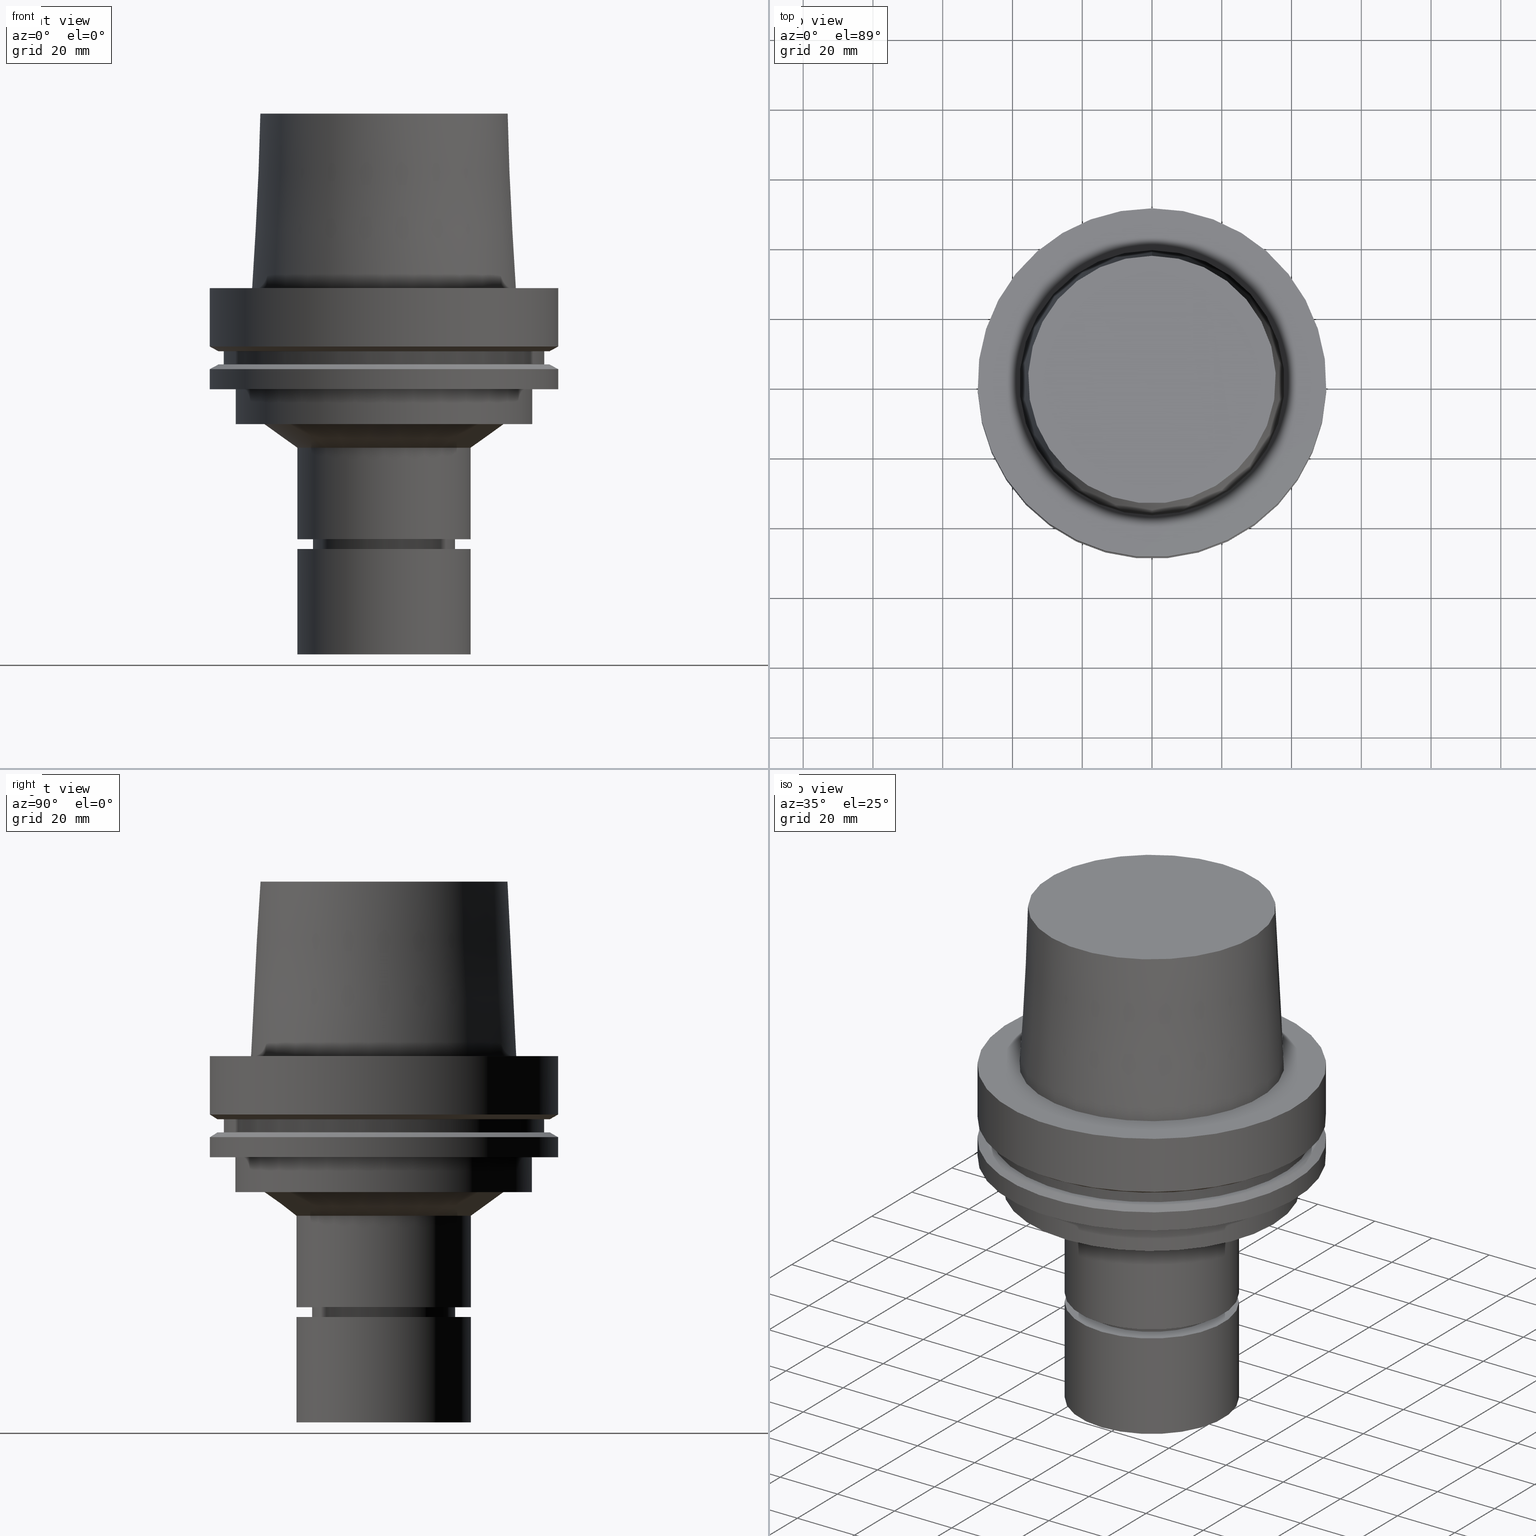
[diagram: canonical four-view strip — front | top / right | iso, engineering-drawing reading convention]
A machine part, canonical four-view strip (front | top / right | iso — engineering-drawing reading convention). The complete STEP part file that produces these views, byte-faithful:
ISO-10303-21;
HEADER;
FILE_DESCRIPTION((''),'1');
FILE_NAME('U:/Translate/02_3D_Field-HP\X2\FF71FF6FFF8CFF9F5916\X0\2013/02_Step_Field-HP\X2\FF71FF6FFF8CFF9F5916\X0\2013/HSK-A100-MEGAER32-105NL.stp','2016-06-22T02:52:50',(''),(''),'Spatial Interop R21 SP3','Kubotek KeyCreator 2011 V10.0.2 (22737)',' ');
FILE_SCHEMA(('automotive_design'));
ENDSEC;
DATA;
#1=MECHANICAL_DESIGN_GEOMETRIC_PRESENTATION_REPRESENTATION(' ',(#14,#15,#16,#17,#18,#19,#20,#21,#22,#23,#24,#25,#26,#27,#28,#29,#30,#31,#32,#33,#34,#35,#36,#37,#38,#39,#40,#41,#42,#43,#44,#45,#46,#47,#48,#49,#50,#51,#52,#53,#54,#55,#56,#57,#58,#59,#60,#61),#10);
#2=PRODUCT_DEFINITION_CONTEXT('',#62,'design');
#3=APPLICATION_PROTOCOL_DEFINITION('INTERNATIONAL STANDARD','automotive_design',1994,#62);
#4=PRODUCT_CATEGORY_RELATIONSHIP('NONE','NONE',#63,#64);
#5=SHAPE_DEFINITION_REPRESENTATION(#65,#66);
#6=PRODUCT_DEFINITION_CONTEXT('',#67,'design');
#7=APPLICATION_PROTOCOL_DEFINITION('INTERNATIONAL STANDARD','automotive_design',1994,#67);
#8=PRODUCT_CATEGORY_RELATIONSHIP('NONE','NONE',#68,#69);
#9=SHAPE_DEFINITION_REPRESENTATION(#70,#71);
#10= (GEOMETRIC_REPRESENTATION_CONTEXT(3)GLOBAL_UNCERTAINTY_ASSIGNED_CONTEXT((#74))GLOBAL_UNIT_ASSIGNED_CONTEXT((#76,#77,#78))REPRESENTATION_CONTEXT('NONE','WORKSPACE'));
#14=STYLED_ITEM('',(#80,#81),#82);
#15=STYLED_ITEM('',(#83,#84),#85);
#16=STYLED_ITEM('',(#86,#87),#88);
#17=STYLED_ITEM('',(#89),#90);
#18=STYLED_ITEM('',(#91,#92),#93);
#19=STYLED_ITEM('',(#94),#95);
#20=STYLED_ITEM('',(#96),#97);
#21=STYLED_ITEM('',(#98),#99);
#22=STYLED_ITEM('',(#100,#101),#102);
#23=STYLED_ITEM('',(#103,#104),#105);
#24=STYLED_ITEM('',(#106),#107);
#25=STYLED_ITEM('',(#108,#109),#110);
#26=STYLED_ITEM('',(#111,#112),#113);
#27=STYLED_ITEM('',(#114,#115),#116);
#28=STYLED_ITEM('',(#117,#118),#119);
#29=STYLED_ITEM('',(#120),#121);
#30=STYLED_ITEM('',(#122,#123),#124);
#31=STYLED_ITEM('',(#125),#126);
#32=STYLED_ITEM('',(#127),#128);
#33=STYLED_ITEM('',(#129,#130),#131);
#34=STYLED_ITEM('',(#132,#133),#134);
#35=STYLED_ITEM('',(#135,#136),#137);
#36=STYLED_ITEM('',(#138,#139),#140);
#37=STYLED_ITEM('',(#141),#142);
#38=STYLED_ITEM('',(#143),#144);
#39=STYLED_ITEM('',(#145,#146),#147);
#40=STYLED_ITEM('',(#148),#149);
#41=STYLED_ITEM('',(#150),#151);
#42=STYLED_ITEM('',(#152),#153);
#43=STYLED_ITEM('',(#154,#155),#156);
#44=STYLED_ITEM('',(#157),#158);
#45=STYLED_ITEM('',(#159),#160);
#46=STYLED_ITEM('',(#161,#162),#163);
#47=STYLED_ITEM('',(#164,#165),#166);
#48=STYLED_ITEM('',(#167,#168),#169);
#49=STYLED_ITEM('',(#170),#171);
#50=STYLED_ITEM('',(#172),#173);
#51=STYLED_ITEM('',(#174),#175);
#52=STYLED_ITEM('',(#176,#177),#178);
#53=STYLED_ITEM('',(#179),#180);
#54=STYLED_ITEM('',(#181,#182),#183);
#55=STYLED_ITEM('',(#184),#185);
#56=STYLED_ITEM('',(#186),#187);
#57=STYLED_ITEM('',(#188,#189),#190);
#58=STYLED_ITEM('',(#191,#192),#193);
#59=STYLED_ITEM('',(#194),#195);
#60=STYLED_ITEM('',(#196,#197),#198);
#61=STYLED_ITEM('',(#199,#200),#201);
#62=APPLICATION_CONTEXT(' ');
#63=PRODUCT_CATEGORY('part','NONE');
#64=PRODUCT_RELATED_PRODUCT_CATEGORY('detail',' ',(#202));
#65=PRODUCT_DEFINITION_SHAPE('NONE','NONE',#203);
#66=ADVANCED_BREP_SHAPE_REPRESENTATION('Unnamed[1]',(#102,#204),#10);
#67=APPLICATION_CONTEXT(' ');
#68=PRODUCT_CATEGORY('part','NONE');
#69=PRODUCT_RELATED_PRODUCT_CATEGORY('detail',' ',(#205));
#70=PRODUCT_DEFINITION_SHAPE('NONE','NONE',#206);
#71=ADVANCED_BREP_SHAPE_REPRESENTATION('Unnamed[1]',(#88,#207),#10);
#74=UNCERTAINTY_MEASURE_WITH_UNIT(LENGTH_MEASURE(1.0E-006),#76,'','');
#76= (CONVERSION_BASED_UNIT('MILLIMETRE',#210)LENGTH_UNIT()NAMED_UNIT(#213));
#77= (NAMED_UNIT(#215)PLANE_ANGLE_UNIT()SI_UNIT($,.RADIAN.));
#78= (NAMED_UNIT(#215)SOLID_ANGLE_UNIT()SI_UNIT($,.STERADIAN.));
#80=PRESENTATION_STYLE_ASSIGNMENT((#221));
#81=PRESENTATION_STYLE_ASSIGNMENT((#222));
#82=ADVANCED_FACE('Unnamed[1]',(#223,#224),#225,.T.);
#83=PRESENTATION_STYLE_ASSIGNMENT((#226));
#84=PRESENTATION_STYLE_ASSIGNMENT((#227));
#85=ADVANCED_FACE('Unnamed[1]',(#228,#229),#230,.T.);
#86=PRESENTATION_STYLE_ASSIGNMENT((#231));
#87=PRESENTATION_STYLE_ASSIGNMENT((#232));
#88=MANIFOLD_SOLID_BREP('Unnamed[1]',#233);
#89=PRESENTATION_STYLE_ASSIGNMENT((#234));
#90=EDGE_CURVE('Unnamed[1]',#235,#235,#236,.T.);
#91=PRESENTATION_STYLE_ASSIGNMENT((#237));
#92=PRESENTATION_STYLE_ASSIGNMENT((#238));
#93=ADVANCED_FACE('Unnamed[1]',(#239,#240),#241,.T.);
#94=PRESENTATION_STYLE_ASSIGNMENT((#242));
#95=EDGE_CURVE('Unnamed[1]',#243,#243,#244,.T.);
#96=PRESENTATION_STYLE_ASSIGNMENT((#245));
#97=EDGE_CURVE('Unnamed[1]',#246,#246,#247,.T.);
#98=PRESENTATION_STYLE_ASSIGNMENT((#248));
#99=EDGE_CURVE('Unnamed[1]',#249,#249,#250,.T.);
#100=PRESENTATION_STYLE_ASSIGNMENT((#251));
#101=PRESENTATION_STYLE_ASSIGNMENT((#252));
#102=MANIFOLD_SOLID_BREP('Unnamed[1]',#253);
#103=PRESENTATION_STYLE_ASSIGNMENT((#254));
#104=PRESENTATION_STYLE_ASSIGNMENT((#255));
#105=ADVANCED_FACE('Unnamed[1]',(#256,#257),#258,.T.);
#106=PRESENTATION_STYLE_ASSIGNMENT((#259));
#107=EDGE_CURVE('Unnamed[1]',#260,#260,#261,.T.);
#108=PRESENTATION_STYLE_ASSIGNMENT((#262));
#109=PRESENTATION_STYLE_ASSIGNMENT((#263));
#110=ADVANCED_FACE('Unnamed[1]',(#264,#265),#266,.T.);
#111=PRESENTATION_STYLE_ASSIGNMENT((#267));
#112=PRESENTATION_STYLE_ASSIGNMENT((#268));
#113=ADVANCED_FACE('Unnamed[1]',(#269),#270,.T.);
#114=PRESENTATION_STYLE_ASSIGNMENT((#271));
#115=PRESENTATION_STYLE_ASSIGNMENT((#272));
#116=ADVANCED_FACE('Unnamed[1]',(#273,#274),#275,.T.);
#117=PRESENTATION_STYLE_ASSIGNMENT((#276));
#118=PRESENTATION_STYLE_ASSIGNMENT((#277));
#119=ADVANCED_FACE('Unnamed[1]',(#278,#279),#280,.T.);
#120=PRESENTATION_STYLE_ASSIGNMENT((#281));
#121=EDGE_CURVE('Unnamed[1]',#282,#282,#283,.T.);
#122=PRESENTATION_STYLE_ASSIGNMENT((#284));
#123=PRESENTATION_STYLE_ASSIGNMENT((#285));
#124=ADVANCED_FACE('Unnamed[1]',(#286,#287),#288,.T.);
#125=PRESENTATION_STYLE_ASSIGNMENT((#289));
#126=EDGE_CURVE('Unnamed[1]',#290,#290,#291,.T.);
#127=PRESENTATION_STYLE_ASSIGNMENT((#292));
#128=EDGE_CURVE('Unnamed[1]',#293,#293,#294,.T.);
#129=PRESENTATION_STYLE_ASSIGNMENT((#295));
#130=PRESENTATION_STYLE_ASSIGNMENT((#296));
#131=ADVANCED_FACE('Unnamed[1]',(#297),#298,.T.);
#132=PRESENTATION_STYLE_ASSIGNMENT((#299));
#133=PRESENTATION_STYLE_ASSIGNMENT((#300));
#134=ADVANCED_FACE('Unnamed[1]',(#301,#302),#303,.T.);
#135=PRESENTATION_STYLE_ASSIGNMENT((#304));
#136=PRESENTATION_STYLE_ASSIGNMENT((#305));
#137=ADVANCED_FACE('Unnamed[1]',(#306,#307),#308,.T.);
#138=PRESENTATION_STYLE_ASSIGNMENT((#309));
#139=PRESENTATION_STYLE_ASSIGNMENT((#310));
#140=ADVANCED_FACE('Unnamed[1]',(#311,#312),#313,.T.);
#141=PRESENTATION_STYLE_ASSIGNMENT((#314));
#142=EDGE_CURVE('Unnamed[1]',#315,#315,#316,.T.);
#143=PRESENTATION_STYLE_ASSIGNMENT((#317));
#144=EDGE_CURVE('Unnamed[1]',#318,#318,#319,.T.);
#145=PRESENTATION_STYLE_ASSIGNMENT((#320));
#146=PRESENTATION_STYLE_ASSIGNMENT((#321));
#147=ADVANCED_FACE('Unnamed[1]',(#322,#323),#324,.T.);
#148=PRESENTATION_STYLE_ASSIGNMENT((#325));
#149=EDGE_CURVE('Unnamed[1]',#326,#326,#327,.T.);
#150=PRESENTATION_STYLE_ASSIGNMENT((#328));
#151=EDGE_CURVE('Unnamed[1]',#329,#329,#330,.T.);
#152=PRESENTATION_STYLE_ASSIGNMENT((#331));
#153=EDGE_CURVE('Unnamed[1]',#332,#332,#333,.T.);
#154=PRESENTATION_STYLE_ASSIGNMENT((#334));
#155=PRESENTATION_STYLE_ASSIGNMENT((#335));
#156=ADVANCED_FACE('Unnamed[1]',(#336,#337),#338,.T.);
#157=PRESENTATION_STYLE_ASSIGNMENT((#339));
#158=EDGE_CURVE('Unnamed[1]',#340,#340,#341,.T.);
#159=PRESENTATION_STYLE_ASSIGNMENT((#342));
#160=EDGE_CURVE('Unnamed[1]',#343,#343,#344,.T.);
#161=PRESENTATION_STYLE_ASSIGNMENT((#345));
#162=PRESENTATION_STYLE_ASSIGNMENT((#346));
#163=ADVANCED_FACE('Unnamed[1]',(#347,#348),#349,.T.);
#164=PRESENTATION_STYLE_ASSIGNMENT((#350));
#165=PRESENTATION_STYLE_ASSIGNMENT((#351));
#166=ADVANCED_FACE('Unnamed[1]',(#352,#353),#354,.T.);
#167=PRESENTATION_STYLE_ASSIGNMENT((#355));
#168=PRESENTATION_STYLE_ASSIGNMENT((#356));
#169=ADVANCED_FACE('Unnamed[1]',(#357,#358),#359,.T.);
#170=PRESENTATION_STYLE_ASSIGNMENT((#360));
#171=EDGE_CURVE('Unnamed[1]',#361,#361,#362,.T.);
#172=PRESENTATION_STYLE_ASSIGNMENT((#363));
#173=EDGE_CURVE('Unnamed[1]',#364,#364,#365,.T.);
#174=PRESENTATION_STYLE_ASSIGNMENT((#366));
#175=EDGE_CURVE('Unnamed[1]',#367,#367,#368,.T.);
#176=PRESENTATION_STYLE_ASSIGNMENT((#369));
#177=PRESENTATION_STYLE_ASSIGNMENT((#370));
#178=ADVANCED_FACE('Unnamed[1]',(#371,#372),#373,.T.);
#179=PRESENTATION_STYLE_ASSIGNMENT((#374));
#180=EDGE_CURVE('Unnamed[1]',#375,#375,#376,.T.);
#181=PRESENTATION_STYLE_ASSIGNMENT((#377));
#182=PRESENTATION_STYLE_ASSIGNMENT((#378));
#183=ADVANCED_FACE('Unnamed[1]',(#379,#380),#381,.T.);
#184=PRESENTATION_STYLE_ASSIGNMENT((#382));
#185=EDGE_CURVE('Unnamed[1]',#383,#383,#384,.T.);
#186=PRESENTATION_STYLE_ASSIGNMENT((#385));
#187=EDGE_CURVE('Unnamed[1]',#386,#386,#387,.T.);
#188=PRESENTATION_STYLE_ASSIGNMENT((#388));
#189=PRESENTATION_STYLE_ASSIGNMENT((#389));
#190=ADVANCED_FACE('Unnamed[1]',(#390),#391,.T.);
#191=PRESENTATION_STYLE_ASSIGNMENT((#392));
#192=PRESENTATION_STYLE_ASSIGNMENT((#393));
#193=ADVANCED_FACE('Unnamed[1]',(#394,#395),#396,.T.);
#194=PRESENTATION_STYLE_ASSIGNMENT((#397));
#195=EDGE_CURVE('Unnamed[1]',#398,#398,#399,.T.);
#196=PRESENTATION_STYLE_ASSIGNMENT((#400));
#197=PRESENTATION_STYLE_ASSIGNMENT((#401));
#198=ADVANCED_FACE('Unnamed[1]',(#402,#403),#404,.T.);
#199=PRESENTATION_STYLE_ASSIGNMENT((#405));
#200=PRESENTATION_STYLE_ASSIGNMENT((#406));
#201=ADVANCED_FACE('Unnamed[1]',(#407),#408,.T.);
#202=PRODUCT('Unnamed[1]','Unnamed[1]','PART-Unnamed[1]-DESC',(#409));
#203=PRODUCT_DEFINITION('NONE','NONE',#410,#2);
#204=AXIS2_PLACEMENT_3D('',#411,#412,#413);
#205=PRODUCT('Unnamed[1]','Unnamed[1]','PART-Unnamed[1]-DESC',(#414));
#206=PRODUCT_DEFINITION('NONE','NONE',#415,#6);
#207=AXIS2_PLACEMENT_3D('',#416,#417,#418);
#210=LENGTH_MEASURE_WITH_UNIT(LENGTH_MEASURE(1.0),#419);
#213=DIMENSIONAL_EXPONENTS(1.0,0.0,0.0,0.0,0.0,0.0,0.0);
#215=DIMENSIONAL_EXPONENTS(0.0,0.0,0.0,0.0,0.0,0.0,0.0);
#221=SURFACE_STYLE_USAGE(.BOTH.,#420);
#222=CURVE_STYLE('',#421,POSITIVE_LENGTH_MEASURE(1000.0),#422);
#223=FACE_BOUND('',#423,.T.);
#224=FACE_BOUND('',#424,.T.);
#225=CYLINDRICAL_SURFACE('',#425,20.0);
#226=SURFACE_STYLE_USAGE(.BOTH.,#426);
#227=CURVE_STYLE('',#427,POSITIVE_LENGTH_MEASURE(1000.0),#428);
#228=FACE_BOUND('',#429,.T.);
#229=FACE_BOUND('',#430,.T.);
#230=CYLINDRICAL_SURFACE('',#431,42.5);
#231=SURFACE_STYLE_USAGE(.BOTH.,#432);
#232=CURVE_STYLE('',#433,POSITIVE_LENGTH_MEASURE(1000.0),#434);
#233=CLOSED_SHELL('',(#190,#201,#147));
#234=CURVE_STYLE('',#435,POSITIVE_LENGTH_MEASURE(1000.0),#436);
#235=VERTEX_POINT('',#437);
#236=CIRCLE('',#438,46.0);
#237=SURFACE_STYLE_USAGE(.BOTH.,#439);
#238=CURVE_STYLE('',#440,POSITIVE_LENGTH_MEASURE(1000.0),#441);
#239=FACE_BOUND('',#442,.T.);
#240=FACE_BOUND('',#443,.T.);
#241=CONICAL_SURFACE('',#444,36.7500000007484,0.0499583956894843);
#242=CURVE_STYLE('',#445,POSITIVE_LENGTH_MEASURE(1000.0),#446);
#243=VERTEX_POINT('',#447);
#244=CIRCLE('',#448,42.5);
#245=CURVE_STYLE('',#449,POSITIVE_LENGTH_MEASURE(1000.0),#450);
#246=VERTEX_POINT('',#451);
#247=CIRCLE('',#452,20.5000000000012);
#248=CURVE_STYLE('',#453,POSITIVE_LENGTH_MEASURE(1000.0),#454);
#249=VERTEX_POINT('',#455);
#250=CIRCLE('',#456,18.8999999999997);
#251=SURFACE_STYLE_USAGE(.BOTH.,#457);
#252=CURVE_STYLE('',#458,POSITIVE_LENGTH_MEASURE(1000.0),#459);
#253=CLOSED_SHELL('',(#131,#93,#137,#116,#178,#134,#119,#183,#140,#156,#163,#85,#105,#169,#193,#166,#198,#110,#82,#124,#113));
#254=SURFACE_STYLE_USAGE(.BOTH.,#460);
#255=CURVE_STYLE('',#461,POSITIVE_LENGTH_MEASURE(1000.0),#462);
#256=FACE_BOUND('',#463,.T.);
#257=FACE_OUTER_BOUND('',#464,.T.);
#258=PLANE('',#465);
#259=CURVE_STYLE('',#466,POSITIVE_LENGTH_MEASURE(1000.0),#467);
#260=VERTEX_POINT('',#468);
#261=CIRCLE('',#469,47.62259526);
#262=SURFACE_STYLE_USAGE(.BOTH.,#470);
#263=CURVE_STYLE('',#471,POSITIVE_LENGTH_MEASURE(1000.0),#472);
#264=FACE_BOUND('',#473,.T.);
#265=FACE_BOUND('',#474,.T.);
#266=CONICAL_SURFACE('',#475,20.2500000000006,0.766162649696593);
#267=SURFACE_STYLE_USAGE(.BOTH.,#476);
#268=CURVE_STYLE('',#477,POSITIVE_LENGTH_MEASURE(1000.0),#478);
#269=FACE_OUTER_BOUND('',#479,.T.);
#270=PLANE('',#480);
#271=SURFACE_STYLE_USAGE(.BOTH.,#481);
#272=CURVE_STYLE('',#482,POSITIVE_LENGTH_MEASURE(1000.0),#483);
#273=FACE_BOUND('',#484,.T.);
#274=FACE_BOUND('',#485,.T.);
#275=CYLINDRICAL_SURFACE('',#486,50.0);
#276=SURFACE_STYLE_USAGE(.BOTH.,#487);
#277=CURVE_STYLE('',#488,POSITIVE_LENGTH_MEASURE(1000.0),#489);
#278=FACE_BOUND('',#490,.T.);
#279=FACE_BOUND('',#491,.T.);
#280=CYLINDRICAL_SURFACE('',#492,46.0);
#281=CURVE_STYLE('',#493,POSITIVE_LENGTH_MEASURE(1000.0),#494);
#282=VERTEX_POINT('',#495);
#283=CIRCLE('',#496,20.0000000000001);
#284=SURFACE_STYLE_USAGE(.BOTH.,#497);
#285=CURVE_STYLE('',#498,POSITIVE_LENGTH_MEASURE(1000.0),#499);
#286=FACE_BOUND('',#500,.T.);
#287=FACE_BOUND('',#501,.T.);
#288=CONICAL_SURFACE('',#502,19.4499999999999,0.523598775598222);
#289=CURVE_STYLE('',#503,POSITIVE_LENGTH_MEASURE(1000.0),#504);
#290=VERTEX_POINT('',#505);
#291=CIRCLE('',#506,35.5000000015618);
#292=CURVE_STYLE('',#507,POSITIVE_LENGTH_MEASURE(1000.0),#508);
#293=VERTEX_POINT('',#509);
#294=CIRCLE('',#510,50.0);
#295=SURFACE_STYLE_USAGE(.BOTH.,#511);
#296=CURVE_STYLE('',#512,POSITIVE_LENGTH_MEASURE(1000.0),#513);
#297=FACE_OUTER_BOUND('',#514,.T.);
#298=PLANE('',#515);
#299=SURFACE_STYLE_USAGE(.BOTH.,#516);
#300=CURVE_STYLE('',#517,POSITIVE_LENGTH_MEASURE(1000.0),#518);
#301=FACE_BOUND('',#519,.T.);
#302=FACE_OUTER_BOUND('',#520,.T.);
#303=PLANE('',#521);
#304=SURFACE_STYLE_USAGE(.BOTH.,#522);
#305=CURVE_STYLE('',#523,POSITIVE_LENGTH_MEASURE(1000.0),#524);
#306=FACE_OUTER_BOUND('',#525,.T.);
#307=FACE_BOUND('',#526,.T.);
#308=PLANE('',#527);
#309=SURFACE_STYLE_USAGE(.BOTH.,#528);
#310=CURVE_STYLE('',#529,POSITIVE_LENGTH_MEASURE(1000.0),#530);
#311=FACE_BOUND('',#531,.T.);
#312=FACE_BOUND('',#532,.T.);
#313=CONICAL_SURFACE('',#533,48.81129763,1.04719755328238);
#314=CURVE_STYLE('',#534,POSITIVE_LENGTH_MEASURE(1000.0),#535);
#315=VERTEX_POINT('',#536);
#316=CIRCLE('',#537,25.0);
#317=CURVE_STYLE('',#538,POSITIVE_LENGTH_MEASURE(1000.0),#539);
#318=VERTEX_POINT('',#540);
#319=CIRCLE('',#541,46.0);
#320=SURFACE_STYLE_USAGE(.BOTH.,#542);
#321=CURVE_STYLE('',#543,POSITIVE_LENGTH_MEASURE(1000.0),#544);
#322=FACE_BOUND('',#545,.T.);
#323=FACE_BOUND('',#546,.T.);
#324=CYLINDRICAL_SURFACE('',#547,25.0);
#325=CURVE_STYLE('',#548,POSITIVE_LENGTH_MEASURE(1000.0),#549);
#326=VERTEX_POINT('',#550);
#327=CIRCLE('',#551,25.0);
#328=CURVE_STYLE('',#552,POSITIVE_LENGTH_MEASURE(1000.0),#553);
#329=VERTEX_POINT('',#554);
#330=CIRCLE('',#555,25.0);
#331=CURVE_STYLE('',#556,POSITIVE_LENGTH_MEASURE(1000.0),#557);
#332=VERTEX_POINT('',#558);
#333=CIRCLE('',#559,42.5);
#334=SURFACE_STYLE_USAGE(.BOTH.,#560);
#335=CURVE_STYLE('',#561,POSITIVE_LENGTH_MEASURE(1000.0),#562);
#336=FACE_BOUND('',#563,.T.);
#337=FACE_BOUND('',#564,.T.);
#338=CYLINDRICAL_SURFACE('',#565,50.0);
#339=CURVE_STYLE('',#566,POSITIVE_LENGTH_MEASURE(1000.0),#567);
#340=VERTEX_POINT('',#568);
#341=CIRCLE('',#569,50.0);
#342=CURVE_STYLE('',#570,POSITIVE_LENGTH_MEASURE(1000.0),#571);
#343=VERTEX_POINT('',#572);
#344=CIRCLE('',#573,25.0);
#345=SURFACE_STYLE_USAGE(.BOTH.,#574);
#346=CURVE_STYLE('',#575,POSITIVE_LENGTH_MEASURE(1000.0),#576);
#347=FACE_BOUND('',#577,.T.);
#348=FACE_OUTER_BOUND('',#578,.T.);
#349=PLANE('',#579);
#350=SURFACE_STYLE_USAGE(.BOTH.,#580);
#351=CURVE_STYLE('',#581,POSITIVE_LENGTH_MEASURE(1000.0),#582);
#352=FACE_BOUND('',#583,.T.);
#353=FACE_OUTER_BOUND('',#584,.T.);
#354=PLANE('',#585);
#355=SURFACE_STYLE_USAGE(.BOTH.,#586);
#356=CURVE_STYLE('',#587,POSITIVE_LENGTH_MEASURE(1000.0),#588);
#357=FACE_BOUND('',#589,.T.);
#358=FACE_BOUND('',#590,.T.);
#359=CONICAL_SURFACE('',#591,29.6596647228089,0.942916776538433);
#360=CURVE_STYLE('',#592,POSITIVE_LENGTH_MEASURE(1000.0),#593);
#361=VERTEX_POINT('',#594);
#362=CIRCLE('',#595,50.0);
#363=CURVE_STYLE('',#596,POSITIVE_LENGTH_MEASURE(1000.0),#597);
#364=VERTEX_POINT('',#598);
#365=CIRCLE('',#599,34.3193294456178);
#366=CURVE_STYLE('',#600,POSITIVE_LENGTH_MEASURE(1000.0),#601);
#367=VERTEX_POINT('',#602);
#368=CIRCLE('',#603,20.0);
#369=SURFACE_STYLE_USAGE(.BOTH.,#604);
#370=CURVE_STYLE('',#605,POSITIVE_LENGTH_MEASURE(1000.0),#606);
#371=FACE_BOUND('',#607,.T.);
#372=FACE_BOUND('',#608,.T.);
#373=CONICAL_SURFACE('',#609,48.81129763,1.04719755328238);
#374=CURVE_STYLE('',#610,POSITIVE_LENGTH_MEASURE(1000.0),#611);
#375=VERTEX_POINT('',#612);
#376=CIRCLE('',#613,37.9999999999349);
#377=SURFACE_STYLE_USAGE(.BOTH.,#614);
#378=CURVE_STYLE('',#615,POSITIVE_LENGTH_MEASURE(1000.0),#616);
#379=FACE_OUTER_BOUND('',#617,.T.);
#380=FACE_BOUND('',#618,.T.);
#381=PLANE('',#619);
#382=CURVE_STYLE('',#620,POSITIVE_LENGTH_MEASURE(1000.0),#621);
#383=VERTEX_POINT('',#622);
#384=CIRCLE('',#623,50.0);
#385=CURVE_STYLE('',#624,POSITIVE_LENGTH_MEASURE(1000.0),#625);
#386=VERTEX_POINT('',#626);
#387=CIRCLE('',#627,47.62259526);
#388=SURFACE_STYLE_USAGE(.BOTH.,#628);
#389=CURVE_STYLE('',#629,POSITIVE_LENGTH_MEASURE(1000.0),#630);
#390=FACE_OUTER_BOUND('',#631,.T.);
#391=PLANE('',#632);
#392=SURFACE_STYLE_USAGE(.BOTH.,#633);
#393=CURVE_STYLE('',#634,POSITIVE_LENGTH_MEASURE(1000.0),#635);
#394=FACE_BOUND('',#636,.T.);
#395=FACE_BOUND('',#637,.T.);
#396=CYLINDRICAL_SURFACE('',#638,25.0);
#397=CURVE_STYLE('',#639,POSITIVE_LENGTH_MEASURE(1000.0),#640);
#398=VERTEX_POINT('',#641);
#399=CIRCLE('',#642,20.4999999999911);
#400=SURFACE_STYLE_USAGE(.BOTH.,#643);
#401=CURVE_STYLE('',#644,POSITIVE_LENGTH_MEASURE(1000.0),#645);
#402=FACE_BOUND('',#646,.T.);
#403=FACE_BOUND('',#647,.T.);
#404=CYLINDRICAL_SURFACE('',#648,20.4999999999961);
#405=SURFACE_STYLE_USAGE(.BOTH.,#649);
#406=CURVE_STYLE('',#650,POSITIVE_LENGTH_MEASURE(1000.0),#651);
#407=FACE_OUTER_BOUND('',#652,.T.);
#408=PLANE('',#653);
#409=PRODUCT_CONTEXT('',#62,'mechanical');
#410=PRODUCT_DEFINITION_FORMATION_WITH_SPECIFIED_SOURCE(' ','NONE',#202,.NOT_KNOWN.);
#411=CARTESIAN_POINT('',(0.0,0.0,0.0));
#412=DIRECTION('',(0.0,0.0,1.0));
#413=DIRECTION('',(1.0,0.0,0.0));
#414=PRODUCT_CONTEXT('',#67,'mechanical');
#415=PRODUCT_DEFINITION_FORMATION_WITH_SPECIFIED_SOURCE(' ','NONE',#205,.NOT_KNOWN.);
#416=CARTESIAN_POINT('',(0.0,0.0,0.0));
#417=DIRECTION('',(0.0,0.0,1.0));
#418=DIRECTION('',(1.0,0.0,0.0));
#419= (NAMED_UNIT(#213)LENGTH_UNIT()SI_UNIT(.MILLI.,.METRE.));
#420=SURFACE_SIDE_STYLE('',(#655));
#421=DRAUGHTING_PRE_DEFINED_CURVE_FONT('continuous');
#422=COLOUR_RGB('',0.0,1.0,0.0);
#423=EDGE_LOOP('',(#656));
#424=EDGE_LOOP('',(#657));
#425=AXIS2_PLACEMENT_3D('',#658,#659,#660);
#426=SURFACE_SIDE_STYLE('',(#661));
#427=DRAUGHTING_PRE_DEFINED_CURVE_FONT('continuous');
#428=COLOUR_RGB('',0.0,1.0,0.0);
#429=EDGE_LOOP('',(#662));
#430=EDGE_LOOP('',(#663));
#431=AXIS2_PLACEMENT_3D('',#664,#665,#666);
#432=SURFACE_SIDE_STYLE('',(#667));
#433=DRAUGHTING_PRE_DEFINED_CURVE_FONT('continuous');
#434=COLOUR_RGB('',0.0,1.0,0.0);
#435=DRAUGHTING_PRE_DEFINED_CURVE_FONT('continuous');
#436=COLOUR_RGB('',0.0,1.0,0.0);
#437=CARTESIAN_POINT('',(1.33945743656742E-015,46.0,-21.875));
#438=AXIS2_PLACEMENT_3D('',#668,#669,#670);
#439=SURFACE_SIDE_STYLE('',(#671));
#440=DRAUGHTING_PRE_DEFINED_CURVE_FONT('continuous');
#441=COLOUR_RGB('',0.0,1.0,0.0);
#442=EDGE_LOOP('',(#672));
#443=EDGE_LOOP('',(#673));
#444=AXIS2_PLACEMENT_3D('',#674,#675,#676);
#445=DRAUGHTING_PRE_DEFINED_CURVE_FONT('continuous');
#446=COLOUR_RGB('',0.0,1.0,0.0);
#447=CARTESIAN_POINT('',(1.77573785876366E-015,42.5,-29.0));
#448=AXIS2_PLACEMENT_3D('',#677,#678,#679);
#449=DRAUGHTING_PRE_DEFINED_CURVE_FONT('continuous');
#450=COLOUR_RGB('',0.0,1.0,0.0);
#451=CARTESIAN_POINT('',(4.78907208101742E-015,20.5000000000012,-78.211482434801));
#452=AXIS2_PLACEMENT_3D('',#680,#681,#682);
#453=DRAUGHTING_PRE_DEFINED_CURVE_FONT('continuous');
#454=COLOUR_RGB('',0.0,1.0,0.0);
#455=CARTESIAN_POINT('',(5.75583995599257E-015,18.8999999999997,-94.0000000000001));
#456=AXIS2_PLACEMENT_3D('',#683,#684,#685);
#457=SURFACE_SIDE_STYLE('',(#686));
#458=DRAUGHTING_PRE_DEFINED_CURVE_FONT('continuous');
#459=COLOUR_RGB('',0.0,1.0,0.0);
#460=SURFACE_SIDE_STYLE('',(#687));
#461=DRAUGHTING_PRE_DEFINED_CURVE_FONT('continuous');
#462=COLOUR_RGB('',0.0,1.0,0.0);
#463=EDGE_LOOP('',(#688));
#464=EDGE_LOOP('',(#689));
#465=AXIS2_PLACEMENT_3D('',#690,#691,#692);
#466=DRAUGHTING_PRE_DEFINED_CURVE_FONT('continuous');
#467=COLOUR_RGB('',0.0,1.0,0.0);
#468=CARTESIAN_POINT('',(1.10983616172729E-015,47.62259526,-18.125));
#469=AXIS2_PLACEMENT_3D('',#693,#694,#695);
#470=SURFACE_SIDE_STYLE('',(#696));
#471=DRAUGHTING_PRE_DEFINED_CURVE_FONT('continuous');
#472=COLOUR_RGB('',0.0,1.0,0.0);
#473=EDGE_LOOP('',(#697));
#474=EDGE_LOOP('',(#698));
#475=AXIS2_PLACEMENT_3D('',#699,#700,#701);
#476=SURFACE_SIDE_STYLE('',(#702));
#477=DRAUGHTING_PRE_DEFINED_CURVE_FONT('continuous');
#478=COLOUR_RGB('',0.0,1.0,0.0);
#479=EDGE_LOOP('',(#703));
#480=AXIS2_PLACEMENT_3D('',#704,#705,#706);
#481=SURFACE_SIDE_STYLE('',(#707));
#482=DRAUGHTING_PRE_DEFINED_CURVE_FONT('continuous');
#483=COLOUR_RGB('',0.0,1.0,0.0);
#484=EDGE_LOOP('',(#708));
#485=EDGE_LOOP('',(#709));
#486=AXIS2_PLACEMENT_3D('',#710,#711,#712);
#487=SURFACE_SIDE_STYLE('',(#713));
#488=DRAUGHTING_PRE_DEFINED_CURVE_FONT('continuous');
#489=COLOUR_RGB('',0.0,1.0,0.0);
#490=EDGE_LOOP('',(#714));
#491=EDGE_LOOP('',(#715));
#492=AXIS2_PLACEMENT_3D('',#716,#717,#718);
#493=DRAUGHTING_PRE_DEFINED_CURVE_FONT('continuous');
#494=COLOUR_RGB('',0.0,1.0,0.0);
#495=CARTESIAN_POINT('',(5.63917667973277E-015,20.0000000000001,-92.0947441116734));
#496=AXIS2_PLACEMENT_3D('',#719,#720,#721);
#497=SURFACE_SIDE_STYLE('',(#722));
#498=DRAUGHTING_PRE_DEFINED_CURVE_FONT('continuous');
#499=COLOUR_RGB('',0.0,1.0,0.0);
#500=EDGE_LOOP('',(#723));
#501=EDGE_LOOP('',(#724));
#502=AXIS2_PLACEMENT_3D('',#725,#726,#727);
#503=DRAUGHTING_PRE_DEFINED_CURVE_FONT('continuous');
#504=COLOUR_RGB('',0.0,1.0,0.0);
#505=CARTESIAN_POINT('',(-3.06161699786838E-015,35.5000000015618,50.0));
#506=AXIS2_PLACEMENT_3D('',#728,#729,#730);
#507=DRAUGHTING_PRE_DEFINED_CURVE_FONT('continuous');
#508=COLOUR_RGB('',0.0,1.0,0.0);
#509=CARTESIAN_POINT('',(1.77573785876366E-015,50.0,-29.0));
#510=AXIS2_PLACEMENT_3D('',#731,#732,#733);
#511=SURFACE_SIDE_STYLE('',(#734));
#512=DRAUGHTING_PRE_DEFINED_CURVE_FONT('continuous');
#513=COLOUR_RGB('',0.0,1.0,0.0);
#514=EDGE_LOOP('',(#735));
#515=AXIS2_PLACEMENT_3D('',#736,#737,#738);
#516=SURFACE_SIDE_STYLE('',(#739));
#517=DRAUGHTING_PRE_DEFINED_CURVE_FONT('continuous');
#518=COLOUR_RGB('',0.0,1.0,0.0);
#519=EDGE_LOOP('',(#740));
#520=EDGE_LOOP('',(#741));
#521=AXIS2_PLACEMENT_3D('',#742,#743,#744);
#522=SURFACE_SIDE_STYLE('',(#745));
#523=DRAUGHTING_PRE_DEFINED_CURVE_FONT('continuous');
#524=COLOUR_RGB('',0.0,1.0,0.0);
#525=EDGE_LOOP('',(#746));
#526=EDGE_LOOP('',(#747));
#527=AXIS2_PLACEMENT_3D('',#748,#749,#750);
#528=SURFACE_SIDE_STYLE('',(#751));
#529=DRAUGHTING_PRE_DEFINED_CURVE_FONT('continuous');
#530=COLOUR_RGB('',0.0,1.0,0.0);
#531=EDGE_LOOP('',(#752));
#532=EDGE_LOOP('',(#753));
#533=AXIS2_PLACEMENT_3D('',#754,#755,#756);
#534=DRAUGHTING_PRE_DEFINED_CURVE_FONT('continuous');
#535=COLOUR_RGB('',0.0,1.0,0.0);
#536=CARTESIAN_POINT('',(2.80227603553221E-015,25.0,-45.76464067));
#537=AXIS2_PLACEMENT_3D('',#757,#758,#759);
#538=DRAUGHTING_PRE_DEFINED_CURVE_FONT('continuous');
#539=COLOUR_RGB('',0.0,1.0,0.0);
#540=CARTESIAN_POINT('',(1.10983616172729E-015,46.0,-18.125));
#541=AXIS2_PLACEMENT_3D('',#760,#761,#762);
#542=SURFACE_SIDE_STYLE('',(#763));
#543=DRAUGHTING_PRE_DEFINED_CURVE_FONT('continuous');
#544=COLOUR_RGB('',0.0,1.0,0.0);
#545=EDGE_LOOP('',(#764));
#546=EDGE_LOOP('',(#765));
#547=AXIS2_PLACEMENT_3D('',#766,#767,#768);
#548=DRAUGHTING_PRE_DEFINED_CURVE_FONT('continuous');
#549=COLOUR_RGB('',0.0,1.0,0.0);
#550=CARTESIAN_POINT('',(4.5801790288111E-015,25.0,-74.8));
#551=AXIS2_PLACEMENT_3D('',#769,#770,#771);
#552=DRAUGHTING_PRE_DEFINED_CURVE_FONT('continuous');
#553=COLOUR_RGB('',0.0,1.0,0.0);
#554=CARTESIAN_POINT('',(4.40873812527377E-015,25.0,-72.0001575694037));
#555=AXIS2_PLACEMENT_3D('',#772,#773,#774);
#556=DRAUGHTING_PRE_DEFINED_CURVE_FONT('continuous');
#557=COLOUR_RGB('',0.0,1.0,0.0);
#558=CARTESIAN_POINT('',(2.38806125833734E-015,42.5,-39.0));
#559=AXIS2_PLACEMENT_3D('',#775,#776,#777);
#560=SURFACE_SIDE_STYLE('',(#778));
#561=DRAUGHTING_PRE_DEFINED_CURVE_FONT('continuous');
#562=COLOUR_RGB('',0.0,1.0,0.0);
#563=EDGE_LOOP('',(#779));
#564=EDGE_LOOP('',(#780));
#565=AXIS2_PLACEMENT_3D('',#781,#782,#783);
#566=DRAUGHTING_PRE_DEFINED_CURVE_FONT('continuous');
#567=COLOUR_RGB('',0.0,1.0,0.0);
#568=CARTESIAN_POINT('',(1.42350465615161E-015,50.0,-23.24759526));
#569=AXIS2_PLACEMENT_3D('',#784,#785,#786);
#570=DRAUGHTING_PRE_DEFINED_CURVE_FONT('continuous');
#571=COLOUR_RGB('',0.0,1.0,0.0);
#572=CARTESIAN_POINT('',(6.4293956955236E-015,25.0,-105.0));
#573=AXIS2_PLACEMENT_3D('',#787,#788,#789);
#574=SURFACE_SIDE_STYLE('',(#790));
#575=DRAUGHTING_PRE_DEFINED_CURVE_FONT('continuous');
#576=COLOUR_RGB('',0.0,1.0,0.0);
#577=EDGE_LOOP('',(#791));
#578=EDGE_LOOP('',(#792));
#579=AXIS2_PLACEMENT_3D('',#793,#794,#795);
#580=SURFACE_SIDE_STYLE('',(#796));
#581=DRAUGHTING_PRE_DEFINED_CURVE_FONT('continuous');
#582=COLOUR_RGB('',0.0,1.0,0.0);
#583=EDGE_LOOP('',(#797));
#584=EDGE_LOOP('',(#798));
#585=AXIS2_PLACEMENT_3D('',#799,#800,#801);
#586=SURFACE_SIDE_STYLE('',(#802));
#587=DRAUGHTING_PRE_DEFINED_CURVE_FONT('continuous');
#588=COLOUR_RGB('',0.0,1.0,0.0);
#589=EDGE_LOOP('',(#803));
#590=EDGE_LOOP('',(#804));
#591=AXIS2_PLACEMENT_3D('',#805,#806,#807);
#592=DRAUGHTING_PRE_DEFINED_CURVE_FONT('continuous');
#593=COLOUR_RGB('',0.0,1.0,0.0);
#594=CARTESIAN_POINT('',(1.0257889421431E-015,50.0,-16.75240474));
#595=AXIS2_PLACEMENT_3D('',#808,#809,#810);
#596=DRAUGHTING_PRE_DEFINED_CURVE_FONT('continuous');
#597=COLOUR_RGB('',0.0,1.0,0.0);
#598=CARTESIAN_POINT('',(2.38806125833734E-015,34.3193294456178,-39.0));
#599=AXIS2_PLACEMENT_3D('',#811,#812,#813);
#600=DRAUGHTING_PRE_DEFINED_CURVE_FONT('continuous');
#601=COLOUR_RGB('',0.0,1.0,0.0);
#602=CARTESIAN_POINT('',(4.82088933817906E-015,20.0,-78.7310976770699));
#603=AXIS2_PLACEMENT_3D('',#814,#815,#816);
#604=SURFACE_SIDE_STYLE('',(#817));
#605=DRAUGHTING_PRE_DEFINED_CURVE_FONT('continuous');
#606=COLOUR_RGB('',0.0,1.0,0.0);
#607=EDGE_LOOP('',(#818));
#608=EDGE_LOOP('',(#819));
#609=AXIS2_PLACEMENT_3D('',#820,#821,#822);
#610=DRAUGHTING_PRE_DEFINED_CURVE_FONT('continuous');
#611=COLOUR_RGB('',0.0,1.0,0.0);
#612=CARTESIAN_POINT('',(-3.3636548776863E-032,37.9999999999349,-2.44634216324803E-015));
#613=AXIS2_PLACEMENT_3D('',#823,#824,#825);
#614=SURFACE_SIDE_STYLE('',(#826));
#615=DRAUGHTING_PRE_DEFINED_CURVE_FONT('continuous');
#616=COLOUR_RGB('',0.0,1.0,0.0);
#617=EDGE_LOOP('',(#827));
#618=EDGE_LOOP('',(#828));
#619=AXIS2_PLACEMENT_3D('',#829,#830,#831);
#620=DRAUGHTING_PRE_DEFINED_CURVE_FONT('continuous');
#621=COLOUR_RGB('',0.0,1.0,0.0);
#622=CARTESIAN_POINT('',(-1.81547968506605E-031,50.0,-9.76766004263236E-016));
#623=AXIS2_PLACEMENT_3D('',#832,#833,#834);
#624=DRAUGHTING_PRE_DEFINED_CURVE_FONT('continuous');
#625=COLOUR_RGB('',0.0,1.0,0.0);
#626=CARTESIAN_POINT('',(1.33945743656742E-015,47.62259526,-21.875));
#627=AXIS2_PLACEMENT_3D('',#835,#836,#837);
#628=SURFACE_SIDE_STYLE('',(#838));
#629=DRAUGHTING_PRE_DEFINED_CURVE_FONT('continuous');
#630=COLOUR_RGB('',0.0,1.0,0.0);
#631=EDGE_LOOP('',(#839));
#632=AXIS2_PLACEMENT_3D('',#840,#841,#842);
#633=SURFACE_SIDE_STYLE('',(#843));
#634=DRAUGHTING_PRE_DEFINED_CURVE_FONT('continuous');
#635=COLOUR_RGB('',0.0,1.0,0.0);
#636=EDGE_LOOP('',(#844));
#637=EDGE_LOOP('',(#845));
#638=AXIS2_PLACEMENT_3D('',#846,#847,#848);
#639=DRAUGHTING_PRE_DEFINED_CURVE_FONT('continuous');
#640=COLOUR_RGB('',0.0,1.0,0.0);
#641=CARTESIAN_POINT('',(4.4087381252738E-015,20.4999999999911,-72.0001575694042));
#642=AXIS2_PLACEMENT_3D('',#849,#850,#851);
#643=SURFACE_SIDE_STYLE('',(#852));
#644=DRAUGHTING_PRE_DEFINED_CURVE_FONT('continuous');
#645=COLOUR_RGB('',0.0,1.0,0.0);
#646=EDGE_LOOP('',(#853));
#647=EDGE_LOOP('',(#854));
#648=AXIS2_PLACEMENT_3D('',#855,#856,#857);
#649=SURFACE_SIDE_STYLE('',(#858));
#650=DRAUGHTING_PRE_DEFINED_CURVE_FONT('continuous');
#651=COLOUR_RGB('',0.0,1.0,0.0);
#652=EDGE_LOOP('',(#859));
#653=AXIS2_PLACEMENT_3D('',#860,#861,#862);
#655=SURFACE_STYLE_FILL_AREA(#863);
#656=ORIENTED_EDGE('',*,*,#121,.F.);
#657=ORIENTED_EDGE('',*,*,#175,.T.);
#658=CARTESIAN_POINT('',(5.23003300895592E-015,1.04600660179118E-014,-85.4129208943717));
#659=DIRECTION('',(6.12323399573677E-017,1.22464679914735E-016,-1.0));
#660=DIRECTION('',(-1.23259516440783E-032,1.0,1.22464679914735E-016));
#661=SURFACE_STYLE_FILL_AREA(#864);
#662=ORIENTED_EDGE('',*,*,#153,.F.);
#663=ORIENTED_EDGE('',*,*,#95,.T.);
#664=CARTESIAN_POINT('',(2.0818995585505E-015,4.163799117101E-015,-34.0));
#665=DIRECTION('',(6.12323399573677E-017,1.22464679914735E-016,-1.0));
#666=DIRECTION('',(-1.23259516440783E-032,1.0,1.22464679914735E-016));
#667=SURFACE_STYLE_FILL_AREA(#865);
#668=CARTESIAN_POINT('',(1.33945743656742E-015,2.67891487313484E-015,-21.875));
#669=DIRECTION('',(6.12323399573677E-017,1.22464679914735E-016,-1.0));
#670=DIRECTION('',(-1.23259516440783E-032,1.0,1.22464679914735E-016));
#671=SURFACE_STYLE_FILL_AREA(#866);
#672=ORIENTED_EDGE('',*,*,#180,.F.);
#673=ORIENTED_EDGE('',*,*,#126,.T.);
#674=CARTESIAN_POINT('',(-1.53080849893419E-015,-3.06161699786838E-015,25.0));
#675=DIRECTION('',(6.12323399573676E-017,1.22464679914735E-016,-1.0));
#676=DIRECTION('',(-1.23259516440783E-032,1.0,1.22464679914735E-016));
#677=CARTESIAN_POINT('',(1.77573785876366E-015,3.55147571752733E-015,-29.0));
#678=DIRECTION('',(6.12323399573677E-017,1.22464679914735E-016,-1.0));
#679=DIRECTION('',(-1.23259516440783E-032,1.0,1.22464679914735E-016));
#680=CARTESIAN_POINT('',(4.78907208101742E-015,9.57814416203485E-015,-78.211482434801));
#681=DIRECTION('',(6.12323399573677E-017,1.22464679914735E-016,-1.0));
#682=DIRECTION('',(-1.23259516440783E-032,1.0,1.22464679914735E-016));
#683=CARTESIAN_POINT('',(5.75583995599257E-015,1.15116799119851E-014,-94.0000000000001));
#684=DIRECTION('',(6.12323399573677E-017,1.22464679914735E-016,-1.0));
#685=DIRECTION('',(-1.23259516440783E-032,1.0,1.22464679914735E-016));
#686=SURFACE_STYLE_FILL_AREA(#867);
#687=SURFACE_STYLE_FILL_AREA(#868);
#688=ORIENTED_EDGE('',*,*,#173,.F.);
#689=ORIENTED_EDGE('',*,*,#153,.T.);
#690=CARTESIAN_POINT('',(2.38806125833734E-015,38.4096647228089,-39.0));
#691=DIRECTION('',(6.12323399573677E-017,1.22464679914735E-016,-1.0));
#692=DIRECTION('',(-1.23259516440783E-032,1.0,1.22464679914735E-016));
#693=CARTESIAN_POINT('',(1.10983616172729E-015,2.21967232345458E-015,-18.125));
#694=DIRECTION('',(6.12323399573676E-017,1.22464679914735E-016,-1.0));
#695=DIRECTION('',(-1.23259516440783E-032,1.0,1.22464679914735E-016));
#696=SURFACE_STYLE_FILL_AREA(#869);
#697=ORIENTED_EDGE('',*,*,#175,.F.);
#698=ORIENTED_EDGE('',*,*,#97,.T.);
#699=CARTESIAN_POINT('',(4.80498070959825E-015,9.60996141919649E-015,-78.4712900559355));
#700=DIRECTION('',(-6.12323399573677E-017,-1.22464679914735E-016,1.0));
#701=DIRECTION('',(-1.23259516440783E-032,1.0,1.22464679914735E-016));
#702=SURFACE_STYLE_FILL_AREA(#870);
#703=ORIENTED_EDGE('',*,*,#99,.T.);
#704=CARTESIAN_POINT('',(5.75583995599256E-015,9.44999999999986,-94.0));
#705=DIRECTION('',(6.12323399573677E-017,-1.56673738925322E-014,-1.0));
#706=DIRECTION('',(9.54522811695948E-031,1.0,-1.56673738925322E-014));
#707=SURFACE_STYLE_FILL_AREA(#871);
#708=ORIENTED_EDGE('',*,*,#171,.F.);
#709=ORIENTED_EDGE('',*,*,#185,.T.);
#710=CARTESIAN_POINT('',(5.12894471071548E-016,1.0257889421431E-015,-8.37620236999999));
#711=DIRECTION('',(6.12323399573677E-017,1.22464679914735E-016,-1.0));
#712=DIRECTION('',(-1.23259516440783E-032,1.0,1.22464679914735E-016));
#713=SURFACE_STYLE_FILL_AREA(#872);
#714=ORIENTED_EDGE('',*,*,#90,.F.);
#715=ORIENTED_EDGE('',*,*,#144,.T.);
#716=CARTESIAN_POINT('',(1.22464679914735E-015,2.44929359829471E-015,-20.0));
#717=DIRECTION('',(6.12323399573677E-017,1.22464679914735E-016,-1.0));
#718=DIRECTION('',(-1.23259516440783E-032,1.0,1.22464679914735E-016));
#719=CARTESIAN_POINT('',(5.63917667973277E-015,1.12783533594655E-014,-92.0947441116734));
#720=DIRECTION('',(6.12323399573677E-017,1.22464679914735E-016,-1.0));
#721=DIRECTION('',(-1.23259516440783E-032,1.0,1.22464679914735E-016));
#722=SURFACE_STYLE_FILL_AREA(#873);
#723=ORIENTED_EDGE('',*,*,#99,.F.);
#724=ORIENTED_EDGE('',*,*,#121,.T.);
#725=CARTESIAN_POINT('',(5.69750831786267E-015,1.13950166357253E-014,-93.0473720558368));
#726=DIRECTION('',(-6.12323399573677E-017,-1.22464679914735E-016,1.0));
#727=DIRECTION('',(-1.23259516440783E-032,1.0,1.22464679914735E-016));
#728=CARTESIAN_POINT('',(-3.06161699786838E-015,-6.12323399573676E-015,50.0));
#729=DIRECTION('',(6.12323399573677E-017,1.22464679914735E-016,-1.0));
#730=DIRECTION('',(-1.23259516440783E-032,1.0,1.22464679914735E-016));
#731=CARTESIAN_POINT('',(1.77573785876366E-015,3.55147571752733E-015,-29.0));
#732=DIRECTION('',(6.12323399573677E-017,1.22464679914735E-016,-1.0));
#733=DIRECTION('',(-1.23259516440783E-032,1.0,1.22464679914735E-016));
#734=SURFACE_STYLE_FILL_AREA(#874);
#735=ORIENTED_EDGE('',*,*,#126,.F.);
#736=CARTESIAN_POINT('',(-3.06161699786838E-015,17.7500000007809,50.0));
#737=DIRECTION('',(-6.12323399573677E-017,-1.22464679914735E-016,1.0));
#738=DIRECTION('',(1.23259516440783E-032,-1.0,-1.22464679914735E-016));
#739=SURFACE_STYLE_FILL_AREA(#875);
#740=ORIENTED_EDGE('',*,*,#144,.F.);
#741=ORIENTED_EDGE('',*,*,#107,.T.);
#742=CARTESIAN_POINT('',(1.10983616172729E-015,46.81129763,-18.125));
#743=DIRECTION('',(6.12323399573677E-017,1.22464679914735E-016,-1.0));
#744=DIRECTION('',(-1.23259516440783E-032,1.0,1.22464679914735E-016));
#745=SURFACE_STYLE_FILL_AREA(#876);
#746=ORIENTED_EDGE('',*,*,#185,.F.);
#747=ORIENTED_EDGE('',*,*,#180,.T.);
#748=CARTESIAN_POINT('',(-1.07592258641734E-031,43.9999999999675,-1.71155408375563E-015));
#749=DIRECTION('',(-6.12323399573677E-017,-1.22464679914735E-016,1.0));
#750=DIRECTION('',(1.23259516440783E-032,-1.0,-1.22464679914735E-016));
#751=SURFACE_STYLE_FILL_AREA(#877);
#752=ORIENTED_EDGE('',*,*,#158,.F.);
#753=ORIENTED_EDGE('',*,*,#187,.T.);
#754=CARTESIAN_POINT('',(1.38148104635951E-015,2.76296209271903E-015,-22.56129763));
#755=DIRECTION('',(6.12323399573677E-017,1.22464679914735E-016,-1.0));
#756=DIRECTION('',(-1.23259516440783E-032,1.0,1.22464679914735E-016));
#757=CARTESIAN_POINT('',(2.80227603553221E-015,5.60455207106443E-015,-45.76464067));
#758=DIRECTION('',(6.12323399573677E-017,1.22464679914735E-016,-1.0));
#759=DIRECTION('',(-1.23259516440783E-032,1.0,1.22464679914735E-016));
#760=CARTESIAN_POINT('',(1.10983616172729E-015,2.21967232345458E-015,-18.125));
#761=DIRECTION('',(6.12323399573677E-017,1.22464679914735E-016,-1.0));
#762=DIRECTION('',(-1.23259516440783E-032,1.0,1.22464679914735E-016));
#763=SURFACE_STYLE_FILL_AREA(#878);
#764=ORIENTED_EDGE('',*,*,#160,.F.);
#765=ORIENTED_EDGE('',*,*,#149,.T.);
#766=CARTESIAN_POINT('',(5.50478736216735E-015,1.10095747243347E-014,-89.9));
#767=DIRECTION('',(6.12323399573677E-017,1.22464679914735E-016,-1.0));
#768=DIRECTION('',(-1.23259516440783E-032,1.0,1.22464679914735E-016));
#769=CARTESIAN_POINT('',(4.5801790288111E-015,9.1603580576222E-015,-74.8));
#770=DIRECTION('',(6.12323399573677E-017,1.22464679914735E-016,-1.0));
#771=DIRECTION('',(-1.23259516440783E-032,1.0,1.22464679914735E-016));
#772=CARTESIAN_POINT('',(4.40873812527377E-015,8.81747625054753E-015,-72.0001575694037));
#773=DIRECTION('',(6.12323399573677E-017,1.22464679914735E-016,-1.0));
#774=DIRECTION('',(-1.23259516440783E-032,1.0,1.22464679914735E-016));
#775=CARTESIAN_POINT('',(2.38806125833734E-015,4.77612251667468E-015,-39.0));
#776=DIRECTION('',(6.12323399573677E-017,1.22464679914735E-016,-1.0));
#777=DIRECTION('',(-1.23259516440783E-032,1.0,1.22464679914735E-016));
#778=SURFACE_STYLE_FILL_AREA(#879);
#779=ORIENTED_EDGE('',*,*,#128,.F.);
#780=ORIENTED_EDGE('',*,*,#158,.T.);
#781=CARTESIAN_POINT('',(1.59962125745764E-015,3.19924251491527E-015,-26.12379763));
#782=DIRECTION('',(6.12323399573677E-017,1.22464679914735E-016,-1.0));
#783=DIRECTION('',(-1.23259516440783E-032,1.0,1.22464679914735E-016));
#784=CARTESIAN_POINT('',(1.42350465615161E-015,2.84700931230322E-015,-23.24759526));
#785=DIRECTION('',(6.12323399573677E-017,1.22464679914735E-016,-1.0));
#786=DIRECTION('',(-1.23259516440783E-032,1.0,1.22464679914735E-016));
#787=CARTESIAN_POINT('',(6.4293956955236E-015,1.28587913910472E-014,-105.0));
#788=DIRECTION('',(6.12323399573677E-017,1.22464679914735E-016,-1.0));
#789=DIRECTION('',(-1.23259516440783E-032,1.0,1.22464679914735E-016));
#790=SURFACE_STYLE_FILL_AREA(#880);
#791=ORIENTED_EDGE('',*,*,#95,.F.);
#792=ORIENTED_EDGE('',*,*,#128,.T.);
#793=CARTESIAN_POINT('',(1.77573785876366E-015,46.25,-29.0));
#794=DIRECTION('',(6.12323399573677E-017,1.22464679914735E-016,-1.0));
#795=DIRECTION('',(-1.23259516440783E-032,1.0,1.22464679914735E-016));
#796=SURFACE_STYLE_FILL_AREA(#881);
#797=ORIENTED_EDGE('',*,*,#195,.F.);
#798=ORIENTED_EDGE('',*,*,#151,.T.);
#799=CARTESIAN_POINT('',(4.40873812527378E-015,22.7499999999955,-72.000157569404));
#800=DIRECTION('',(6.12323399573677E-017,1.07493366972339E-013,-1.0));
#801=DIRECTION('',(-6.58689754234312E-030,1.0,1.07493366972339E-013));
#802=SURFACE_STYLE_FILL_AREA(#882);
#803=ORIENTED_EDGE('',*,*,#142,.F.);
#804=ORIENTED_EDGE('',*,*,#173,.T.);
#805=CARTESIAN_POINT('',(2.59516864693478E-015,5.19033729386955E-015,-42.382320335));
#806=DIRECTION('',(-6.12323399573677E-017,-1.22464679914735E-016,1.0));
#807=DIRECTION('',(-1.23259516440783E-032,1.0,1.22464679914735E-016));
#808=CARTESIAN_POINT('',(1.0257889421431E-015,2.05157788428619E-015,-16.75240474));
#809=DIRECTION('',(6.12323399573677E-017,1.22464679914735E-016,-1.0));
#810=DIRECTION('',(-1.23259516440783E-032,1.0,1.22464679914735E-016));
#811=CARTESIAN_POINT('',(2.38806125833734E-015,4.77612251667468E-015,-39.0));
#812=DIRECTION('',(6.12323399573677E-017,1.22464679914735E-016,-1.0));
#813=DIRECTION('',(-1.23259516440783E-032,1.0,1.22464679914735E-016));
#814=CARTESIAN_POINT('',(4.82088933817906E-015,9.64177867635813E-015,-78.7310976770699));
#815=DIRECTION('',(6.12323399573677E-017,1.22464679914735E-016,-1.0));
#816=DIRECTION('',(-1.23259516440783E-032,1.0,1.22464679914735E-016));
#817=SURFACE_STYLE_FILL_AREA(#883);
#818=ORIENTED_EDGE('',*,*,#107,.F.);
#819=ORIENTED_EDGE('',*,*,#171,.T.);
#820=CARTESIAN_POINT('',(1.06781255193519E-015,2.13562510387038E-015,-17.43870237));
#821=DIRECTION('',(-6.12323399573677E-017,-1.22464679914735E-016,1.0));
#822=DIRECTION('',(-1.23259516440783E-032,1.0,1.22464679914735E-016));
#823=CARTESIAN_POINT('',(0.0,0.0,0.0));
#824=DIRECTION('',(6.12323399573677E-017,1.22464679914735E-016,-1.0));
#825=DIRECTION('',(-1.23259516440783E-032,1.0,1.22464679914735E-016));
#826=SURFACE_STYLE_FILL_AREA(#884);
#827=ORIENTED_EDGE('',*,*,#187,.F.);
#828=ORIENTED_EDGE('',*,*,#90,.T.);
#829=CARTESIAN_POINT('',(1.33945743656742E-015,46.81129763,-21.875));
#830=DIRECTION('',(-6.12323399573677E-017,-1.22464679914735E-016,1.0));
#831=DIRECTION('',(1.23259516440783E-032,-1.0,-1.22464679914735E-016));
#832=CARTESIAN_POINT('',(0.0,0.0,0.0));
#833=DIRECTION('',(6.12323399573677E-017,1.22464679914735E-016,-1.0));
#834=DIRECTION('',(-1.23259516440783E-032,1.0,1.22464679914735E-016));
#835=CARTESIAN_POINT('',(1.33945743656742E-015,2.67891487313484E-015,-21.875));
#836=DIRECTION('',(6.12323399573676E-017,1.22464679914735E-016,-1.0));
#837=DIRECTION('',(-1.23259516440783E-032,1.0,1.22464679914735E-016));
#838=SURFACE_STYLE_FILL_AREA(#885);
#839=ORIENTED_EDGE('',*,*,#160,.T.);
#840=CARTESIAN_POINT('',(6.4293956955236E-015,12.5,-105.0));
#841=DIRECTION('',(6.12323399573677E-017,1.22464679914735E-016,-1.0));
#842=DIRECTION('',(-1.23259516440783E-032,1.0,1.22464679914735E-016));
#843=SURFACE_STYLE_FILL_AREA(#886);
#844=ORIENTED_EDGE('',*,*,#151,.F.);
#845=ORIENTED_EDGE('',*,*,#142,.T.);
#846=CARTESIAN_POINT('',(3.60550708040299E-015,7.21101416080598E-015,-58.8823991197019));
#847=DIRECTION('',(6.12323399573677E-017,1.22464679914735E-016,-1.0));
#848=DIRECTION('',(-1.23259516440783E-032,1.0,1.22464679914735E-016));
#849=CARTESIAN_POINT('',(4.4087381252738E-015,8.81747625054759E-015,-72.0001575694042));
#850=DIRECTION('',(6.12323399573677E-017,1.22464679914735E-016,-1.0));
#851=DIRECTION('',(-1.23259516440783E-032,1.0,1.22464679914735E-016));
#852=SURFACE_STYLE_FILL_AREA(#887);
#853=ORIENTED_EDGE('',*,*,#97,.F.);
#854=ORIENTED_EDGE('',*,*,#195,.T.);
#855=CARTESIAN_POINT('',(4.59890510314561E-015,9.19781020629122E-015,-75.1058200021026));
#856=DIRECTION('',(6.12323399573676E-017,1.22464679914735E-016,-1.0));
#857=DIRECTION('',(-1.23259516440783E-032,1.0,1.22464679914735E-016));
#858=SURFACE_STYLE_FILL_AREA(#888);
#859=ORIENTED_EDGE('',*,*,#149,.F.);
#860=CARTESIAN_POINT('',(4.5801790288111E-015,12.5,-74.8));
#861=DIRECTION('',(-6.12323399573677E-017,-1.22464679914735E-016,1.0));
#862=DIRECTION('',(1.23259516440783E-032,-1.0,-1.22464679914735E-016));
#863=FILL_AREA_STYLE('',(#889));
#864=FILL_AREA_STYLE('',(#890));
#865=FILL_AREA_STYLE('',(#891));
#866=FILL_AREA_STYLE('',(#892));
#867=FILL_AREA_STYLE('',(#893));
#868=FILL_AREA_STYLE('',(#894));
#869=FILL_AREA_STYLE('',(#895));
#870=FILL_AREA_STYLE('',(#896));
#871=FILL_AREA_STYLE('',(#897));
#872=FILL_AREA_STYLE('',(#898));
#873=FILL_AREA_STYLE('',(#899));
#874=FILL_AREA_STYLE('',(#900));
#875=FILL_AREA_STYLE('',(#901));
#876=FILL_AREA_STYLE('',(#902));
#877=FILL_AREA_STYLE('',(#903));
#878=FILL_AREA_STYLE('',(#904));
#879=FILL_AREA_STYLE('',(#905));
#880=FILL_AREA_STYLE('',(#906));
#881=FILL_AREA_STYLE('',(#907));
#882=FILL_AREA_STYLE('',(#908));
#883=FILL_AREA_STYLE('',(#909));
#884=FILL_AREA_STYLE('',(#910));
#885=FILL_AREA_STYLE('',(#911));
#886=FILL_AREA_STYLE('',(#912));
#887=FILL_AREA_STYLE('',(#913));
#888=FILL_AREA_STYLE('',(#914));
#889=FILL_AREA_STYLE_COLOUR('',#915);
#890=FILL_AREA_STYLE_COLOUR('',#916);
#891=FILL_AREA_STYLE_COLOUR('',#917);
#892=FILL_AREA_STYLE_COLOUR('',#918);
#893=FILL_AREA_STYLE_COLOUR('',#919);
#894=FILL_AREA_STYLE_COLOUR('',#920);
#895=FILL_AREA_STYLE_COLOUR('',#921);
#896=FILL_AREA_STYLE_COLOUR('',#922);
#897=FILL_AREA_STYLE_COLOUR('',#923);
#898=FILL_AREA_STYLE_COLOUR('',#924);
#899=FILL_AREA_STYLE_COLOUR('',#925);
#900=FILL_AREA_STYLE_COLOUR('',#926);
#901=FILL_AREA_STYLE_COLOUR('',#927);
#902=FILL_AREA_STYLE_COLOUR('',#928);
#903=FILL_AREA_STYLE_COLOUR('',#929);
#904=FILL_AREA_STYLE_COLOUR('',#930);
#905=FILL_AREA_STYLE_COLOUR('',#931);
#906=FILL_AREA_STYLE_COLOUR('',#932);
#907=FILL_AREA_STYLE_COLOUR('',#933);
#908=FILL_AREA_STYLE_COLOUR('',#934);
#909=FILL_AREA_STYLE_COLOUR('',#935);
#910=FILL_AREA_STYLE_COLOUR('',#936);
#911=FILL_AREA_STYLE_COLOUR('',#937);
#912=FILL_AREA_STYLE_COLOUR('',#938);
#913=FILL_AREA_STYLE_COLOUR('',#939);
#914=FILL_AREA_STYLE_COLOUR('',#940);
#915=COLOUR_RGB('',0.0,1.0,0.0);
#916=COLOUR_RGB('',0.0,1.0,0.0);
#917=COLOUR_RGB('',0.0,1.0,0.0);
#918=COLOUR_RGB('',0.0,1.0,0.0);
#919=COLOUR_RGB('',0.0,1.0,0.0);
#920=COLOUR_RGB('',0.0,1.0,0.0);
#921=COLOUR_RGB('',0.0,1.0,0.0);
#922=COLOUR_RGB('',0.0,1.0,0.0);
#923=COLOUR_RGB('',0.0,1.0,0.0);
#924=COLOUR_RGB('',0.0,1.0,0.0);
#925=COLOUR_RGB('',0.0,1.0,0.0);
#926=COLOUR_RGB('',0.0,1.0,0.0);
#927=COLOUR_RGB('',0.0,1.0,0.0);
#928=COLOUR_RGB('',0.0,1.0,0.0);
#929=COLOUR_RGB('',0.0,1.0,0.0);
#930=COLOUR_RGB('',0.0,1.0,0.0);
#931=COLOUR_RGB('',0.0,1.0,0.0);
#932=COLOUR_RGB('',0.0,1.0,0.0);
#933=COLOUR_RGB('',0.0,1.0,0.0);
#934=COLOUR_RGB('',0.0,1.0,0.0);
#935=COLOUR_RGB('',0.0,1.0,0.0);
#936=COLOUR_RGB('',0.0,1.0,0.0);
#937=COLOUR_RGB('',0.0,1.0,0.0);
#938=COLOUR_RGB('',0.0,1.0,0.0);
#939=COLOUR_RGB('',0.0,1.0,0.0);
#940=COLOUR_RGB('',0.0,1.0,0.0);
ENDSEC;
END-ISO-10303-21;
